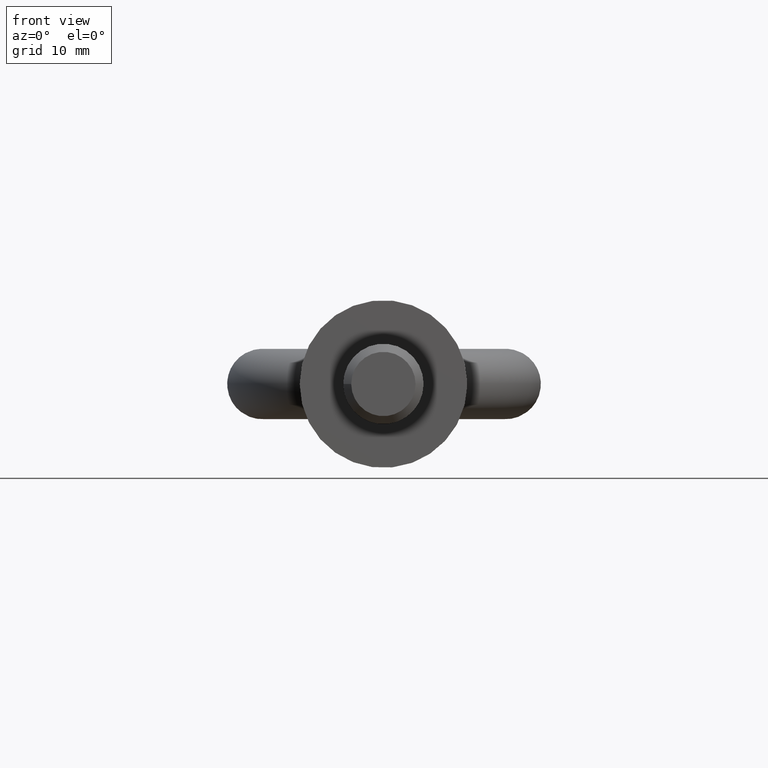
[diagram: clean part render]
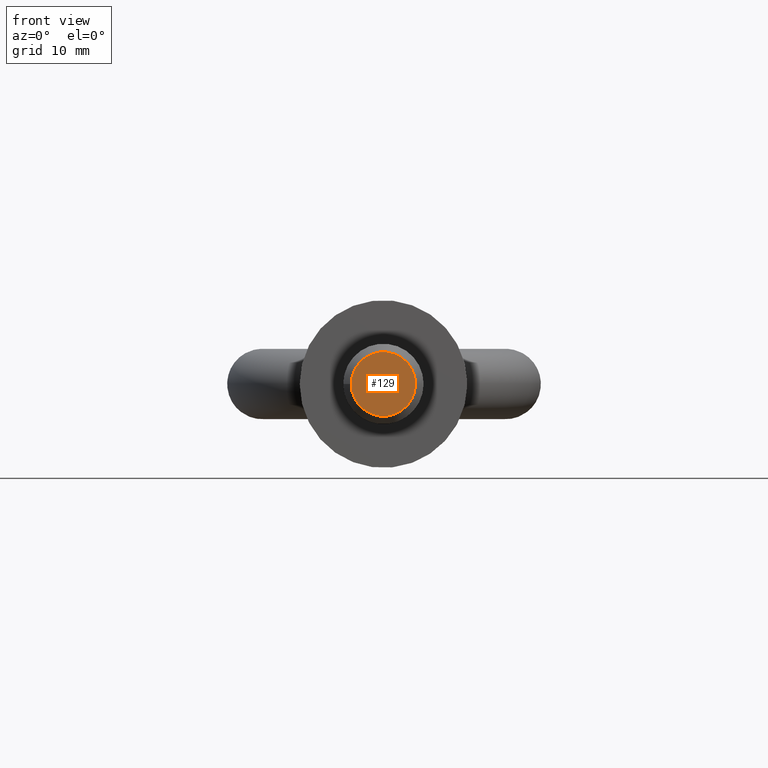
[diagram: same view with one face highlighted and labeled with its STEP entity id]
A machine part, front view. The second image highlights one B-rep face of the part: STEP entity #129.
In plain terms, the highlighted planar face has unit normal (-0, 1, 0).
Its self-contained STEP definition (entity closure, byte-faithful):
#90=PLANE('',#676);
#129=ADVANCED_FACE('',(#192),#90,.F.);
#192=FACE_OUTER_BOUND('',#231,.T.);
#231=EDGE_LOOP('',(#351));
#274=CIRCLE('',#675,4.8);
#351=ORIENTED_EDGE('',*,*,#565,.T.);
#505=VERTEX_POINT('',#1139);
#565=EDGE_CURVE('',#505,#505,#274,.T.);
#675=AXIS2_PLACEMENT_3D('',#1138,#773,#774);
#676=AXIS2_PLACEMENT_3D('',#1140,#775,#776);
#773=DIRECTION('',(9.780921661068E-19,-1.,0.));
#774=DIRECTION('',(-1.,0.,0.));
#775=DIRECTION('',(-9.780921661068E-19,1.,0.));
#776=DIRECTION('',(-1.,0.,0.));
#1138=CARTESIAN_POINT('',(5.25724539282405E-17,-36.,0.));
#1139=CARTESIAN_POINT('',(-4.8,-36.,0.));
#1140=CARTESIAN_POINT('',(2.86999285619848E-36,-36.,0.));